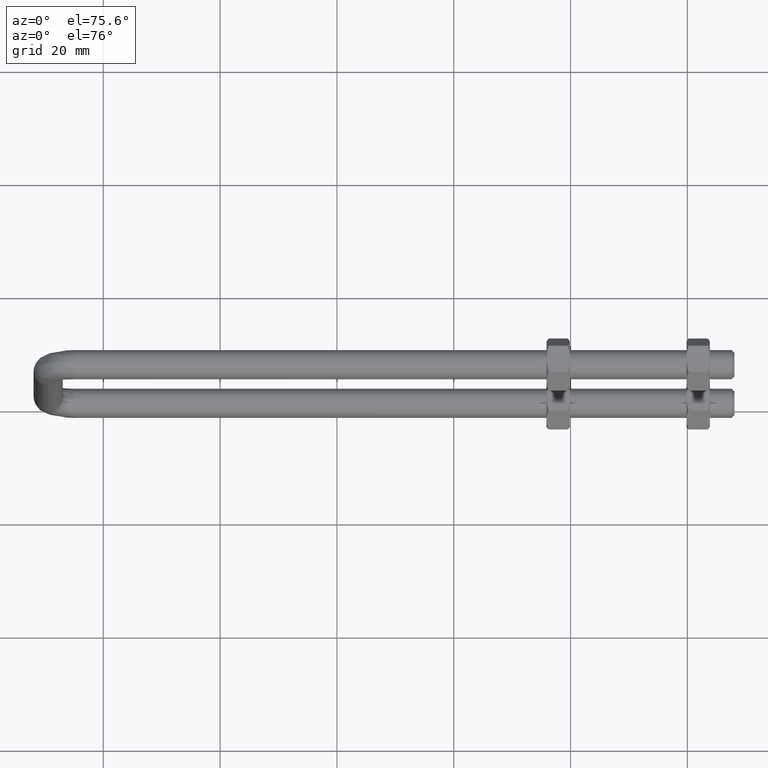
[diagram: clean part render]
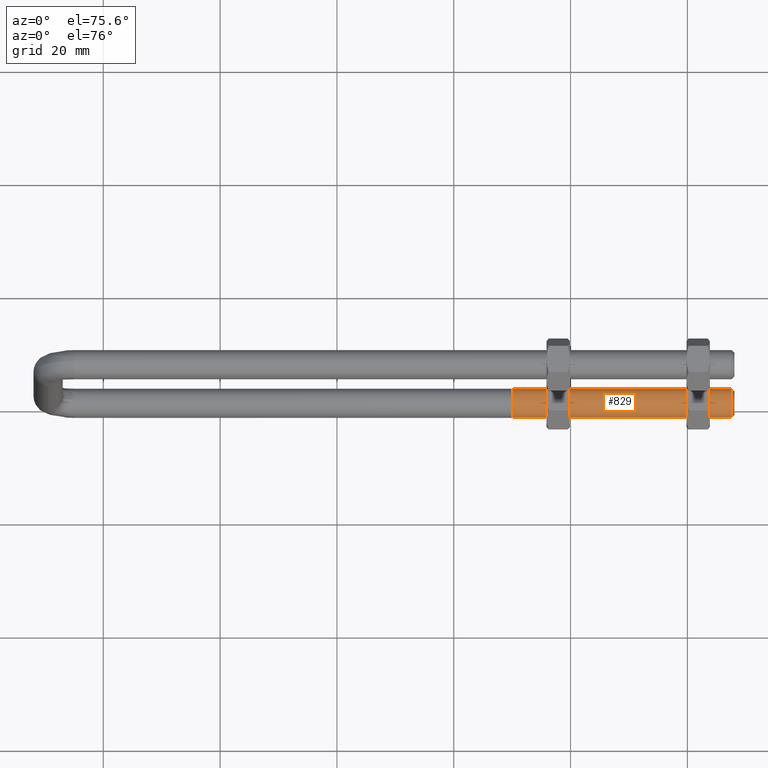
[diagram: same view with one face highlighted and labeled with its STEP entity id]
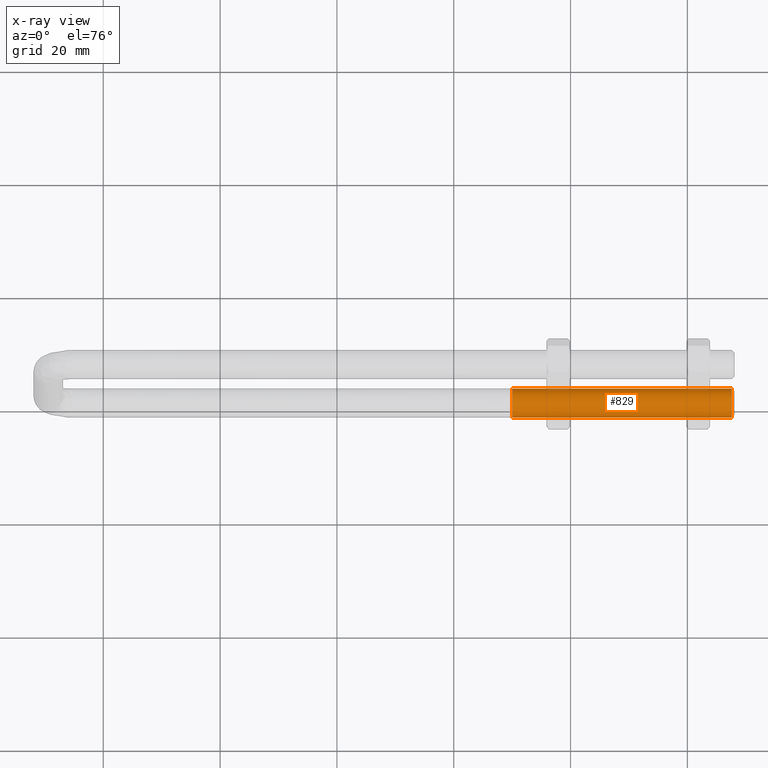
[diagram: x-ray of the same camera — body ghosted, the highlighted face saturated]
A machine part, auxiliary view. The second image highlights one B-rep face of the part: STEP entity #829.
The next image is the same camera in x-ray: the body ghosted, the highlighted face saturated — about 1% of this face is hidden behind the body in this view.
In plain terms, the highlighted cylindrical surface (edge-blend (fillet) strip) has radius 2.5 mm, axis along (-1, 0, 0).
Its self-contained STEP definition (entity closure, byte-faithful):
#11 = CARTESIAN_POINT ( 'NONE',  ( 31.99999999999984700, -26.60000000000000500, 4.553649124439115500E-015 ) ) ;
#57 = CARTESIAN_POINT ( 'NONE',  ( -5.500000000000143900, -26.60000000000000500, -2.499999999999999100 ) ) ;
#149 = DIRECTION ( 'NONE',  ( -1.000000000000000000, 1.138085446107915500E-016, -1.214306433183764700E-016 ) ) ;
#213 = CARTESIAN_POINT ( 'NONE',  ( -5.500000000000143900, -26.60000000000000100, -1.540743955509788700E-030 ) ) ;
#247 = AXIS2_PLACEMENT_3D ( 'NONE', #11, #1698, #1197 ) ;
#430 = CARTESIAN_POINT ( 'NONE',  ( -5.500000000000143900, -26.60000000000000500, 2.499999999999998700 ) ) ;
#433 = VECTOR ( 'NONE', #763, 1000.000000000000000 ) ;
#445 = EDGE_CURVE ( 'NONE', #539, #1144, #1073, .T. ) ;
#465 = LINE ( 'NONE', #622, #1140 ) ;
#490 = DIRECTION ( 'NONE',  ( 0.0000000000000000000, 0.0000000000000000000, -1.000000000000000000 ) ) ;
#507 = DIRECTION ( 'NONE',  ( 0.0000000000000000000, 0.0000000000000000000, 1.000000000000000000 ) ) ;
#539 = VERTEX_POINT ( 'NONE', #57 ) ;
#549 = ORIENTED_EDGE ( 'NONE', *, *, #445, .T. ) ;
#622 = CARTESIAN_POINT ( 'NONE',  ( 32.49999999999986500, -26.60000000000000500, -2.499999999999995100 ) ) ;
#750 = DIRECTION ( 'NONE',  ( -1.000000000000000000, 1.138085446107915500E-016, -1.214306433183764700E-016 ) ) ;
#763 = DIRECTION ( 'NONE',  ( -1.000000000000000000, 1.138085446107915500E-016, -1.214306433183764700E-016 ) ) ;
#765 = EDGE_CURVE ( 'NONE', #1130, #1144, #969, .T. ) ;
#829 = ADVANCED_FACE ( 'NONE', ( #1274 ), #958, .T. ) ;
#830 = CARTESIAN_POINT ( 'NONE',  ( 31.99999999999984700, -26.60000000000000500, -2.499999999999994200 ) ) ;
#932 = ORIENTED_EDGE ( 'NONE', *, *, #1093, .T. ) ;
#958 = CYLINDRICAL_SURFACE ( 'NONE', #1598, 2.500000000000000000 ) ;
#969 = LINE ( 'NONE', #1151, #433 ) ;
#1004 = AXIS2_PLACEMENT_3D ( 'NONE', #213, #1563, #490 ) ;
#1011 = CARTESIAN_POINT ( 'NONE',  ( 32.49999999999986500, -26.60000000000000500, 4.614364446098306900E-015 ) ) ;
#1013 = EDGE_CURVE ( 'NONE', #1130, #1303, #1434, .T. ) ;
#1073 = CIRCLE ( 'NONE', #1004, 2.500000000000000000 ) ;
#1093 = EDGE_CURVE ( 'NONE', #1303, #539, #465, .T. ) ;
#1130 = VERTEX_POINT ( 'NONE', #1639 ) ;
#1136 = ORIENTED_EDGE ( 'NONE', *, *, #1013, .T. ) ;
#1140 = VECTOR ( 'NONE', #750, 1000.000000000000000 ) ;
#1144 = VERTEX_POINT ( 'NONE', #430 ) ;
#1151 = CARTESIAN_POINT ( 'NONE',  ( 32.49999999999986500, -26.60000000000000500, 2.500000000000004900 ) ) ;
#1197 = DIRECTION ( 'NONE',  ( 0.0000000000000000000, 0.0000000000000000000, -1.000000000000000000 ) ) ;
#1274 = FACE_OUTER_BOUND ( 'NONE', #1585, .T. ) ;
#1303 = VERTEX_POINT ( 'NONE', #830 ) ;
#1434 = CIRCLE ( 'NONE', #247, 2.500000000000000000 ) ;
#1563 = DIRECTION ( 'NONE',  ( 1.000000000000000000, -1.138085446107915500E-016, 1.214306433183764700E-016 ) ) ;
#1585 = EDGE_LOOP ( 'NONE', ( #1136, #932, #549, #1640 ) ) ;
#1598 = AXIS2_PLACEMENT_3D ( 'NONE', #1011, #149, #507 ) ;
#1639 = CARTESIAN_POINT ( 'NONE',  ( 31.99999999999984700, -26.60000000000000500, 2.500000000000003600 ) ) ;
#1640 = ORIENTED_EDGE ( 'NONE', *, *, #765, .F. ) ;
#1698 = DIRECTION ( 'NONE',  ( -1.000000000000000000, -0.0000000000000000000, -1.214306433183767400E-016 ) ) ;